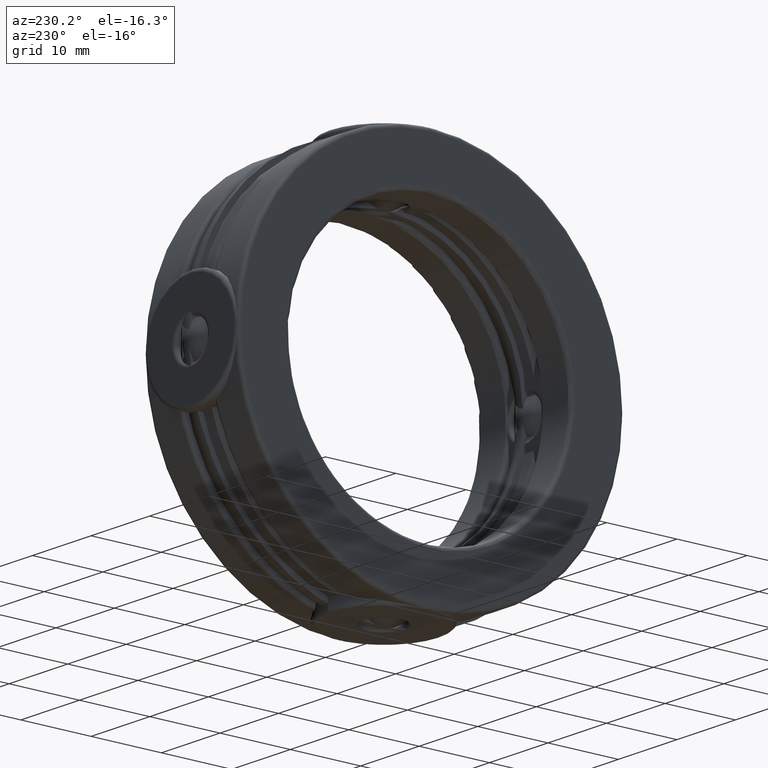
[diagram: clean part render]
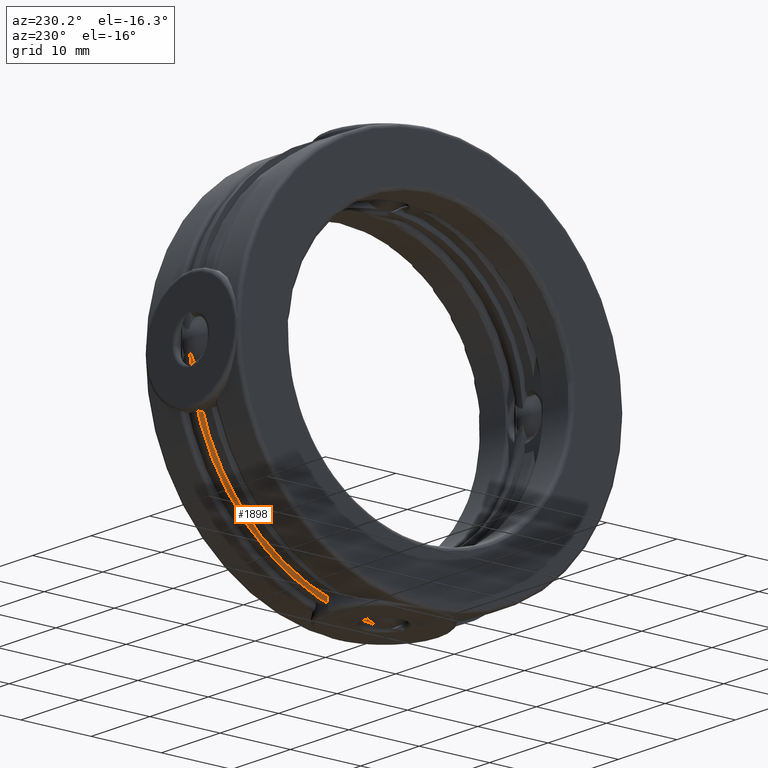
[diagram: same view with one face highlighted and labeled with its STEP entity id]
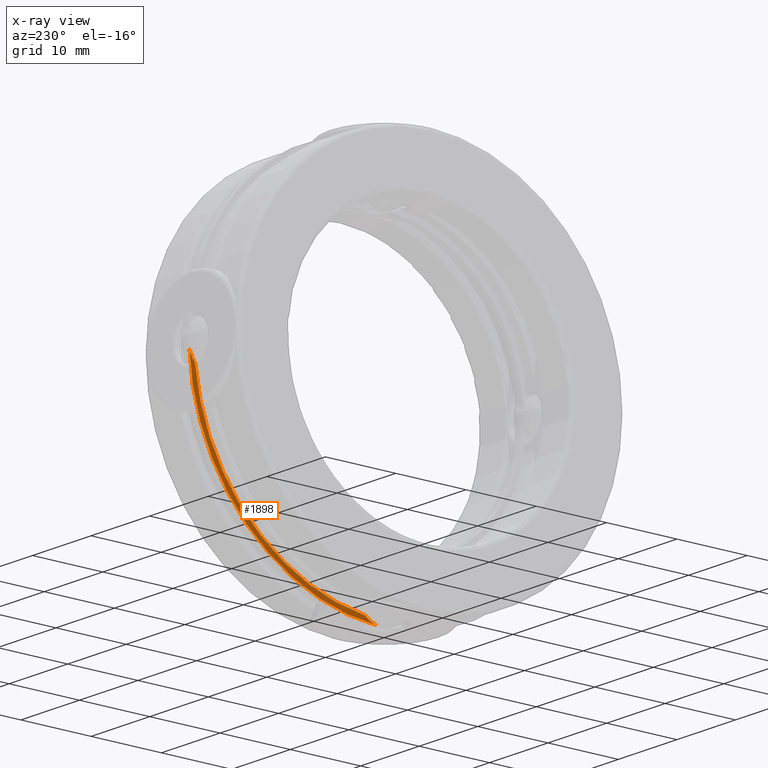
[diagram: x-ray of the same camera — body ghosted, the highlighted face saturated]
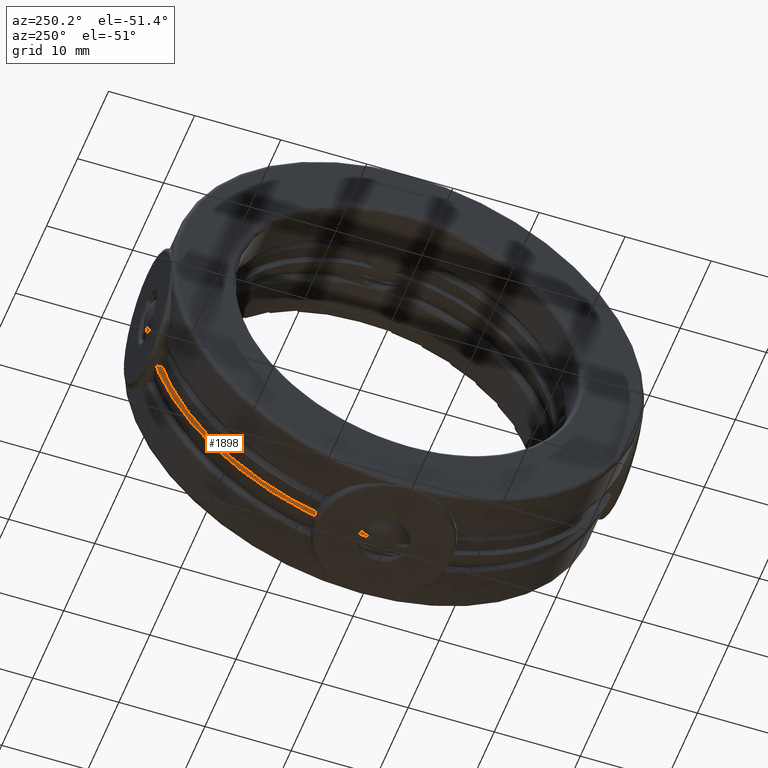
[diagram: same view with one face highlighted and labeled with its STEP entity id]
A machine part, auxiliary view. The second image highlights one B-rep face of the part: STEP entity #1898.
The next image is the same camera in x-ray: the body ghosted, the highlighted face saturated — about 0% of this face is hidden behind the body in this view.
A second angle (auxiliary view) of the same face is appended — the face is thin or edge-on in the first view.
In plain terms, the highlighted planar face has unit normal (1, 0, 0).
Its self-contained STEP definition (entity closure, byte-faithful):
#46 = EDGE_CURVE ( 'NONE', #2689, #1646, #1553, .T. ) ;
#146 = EDGE_LOOP ( 'NONE', ( #320, #1076, #2723, #2658 ) ) ;
#200 = AXIS2_PLACEMENT_3D ( 'NONE', #2102, #1603, #2138 ) ;
#320 = ORIENTED_EDGE ( 'NONE', *, *, #46, .T. ) ;
#482 = AXIS2_PLACEMENT_3D ( 'NONE', #3183, #1488, #996 ) ;
#547 = EDGE_CURVE ( 'NONE', #2689, #1709, #2828, .T. ) ;
#996 = DIRECTION ( 'NONE',  ( 0.0000000000000000000, 8.483999980323798800E-016, -1.000000000000000000 ) ) ;
#1076 = ORIENTED_EDGE ( 'NONE', *, *, #2000, .F. ) ;
#1384 = CIRCLE ( 'NONE', #3051, 0.1610000000000000000 ) ;
#1398 = DIRECTION ( 'NONE',  ( -1.000000000000000000, -0.0000000000000000000, -0.0000000000000000000 ) ) ;
#1488 = DIRECTION ( 'NONE',  ( -1.000000000000000000, -0.0000000000000000000, -0.0000000000000000000 ) ) ;
#1553 = CIRCLE ( 'NONE', #2834, 1.091000000000000200 ) ;
#1603 = DIRECTION ( 'NONE',  ( 1.000000000000000000, 0.0000000000000000000, 0.0000000000000000000 ) ) ;
#1646 = VERTEX_POINT ( 'NONE', #2533 ) ;
#1709 = VERTEX_POINT ( 'NONE', #3213 ) ;
#1790 = FACE_OUTER_BOUND ( 'NONE', #146, .T. ) ;
#1847 = VERTEX_POINT ( 'NONE', #2792 ) ;
#1877 = DIRECTION ( 'NONE',  ( 0.0000000000000000000, 0.0000000000000000000, 1.000000000000000000 ) ) ;
#1898 = ADVANCED_FACE ( 'NONE', ( #1790 ), #2114, .F. ) ;
#1993 = CARTESIAN_POINT ( 'NONE',  ( 0.0000000000000000000, 1.090152406417112400, -0.04299686945556829100 ) ) ;
#2000 = EDGE_CURVE ( 'NONE', #1847, #1646, #1384, .T. ) ;
#2102 = CARTESIAN_POINT ( 'NONE',  ( 0.0000000000000000000, 0.0000000000000000000, 0.0000000000000000000 ) ) ;
#2114 = PLANE ( 'NONE',  #200 ) ;
#2138 = DIRECTION ( 'NONE',  ( 0.0000000000000000000, 0.0000000000000000000, -1.000000000000000000 ) ) ;
#2347 = EDGE_CURVE ( 'NONE', #1709, #1847, #2814, .T. ) ;
#2360 = AXIS2_PLACEMENT_3D ( 'NONE', #3098, #2621, #1877 ) ;
#2511 = DIRECTION ( 'NONE',  ( 0.0000000000000000000, 0.0000000000000000000, 1.000000000000000000 ) ) ;
#2533 = CARTESIAN_POINT ( 'NONE',  ( 0.0000000000000000000, 0.04299686945556448200, -1.090152406417112600 ) ) ;
#2621 = DIRECTION ( 'NONE',  ( -1.000000000000000000, -0.0000000000000000000, -0.0000000000000000000 ) ) ;
#2658 = ORIENTED_EDGE ( 'NONE', *, *, #547, .F. ) ;
#2689 = VERTEX_POINT ( 'NONE', #1993 ) ;
#2709 = CARTESIAN_POINT ( 'NONE',  ( 0.0000000000000000000, 0.0000000000000000000, 0.0000000000000000000 ) ) ;
#2723 = ORIENTED_EDGE ( 'NONE', *, *, #2347, .F. ) ;
#2792 = CARTESIAN_POINT ( 'NONE',  ( 0.0000000000000000000, 0.1046707168665337400, -1.057331684491978900 ) ) ;
#2814 = CIRCLE ( 'NONE', #2360, 1.062500000000000000 ) ;
#2828 = CIRCLE ( 'NONE', #482, 0.1610000000000000000 ) ;
#2834 = AXIS2_PLACEMENT_3D ( 'NONE', #2709, #3217, #2511 ) ;
#2873 = CARTESIAN_POINT ( 'NONE',  ( 0.0000000000000000000, -3.264535051818329600E-015, -0.9350000000000000500 ) ) ;
#3051 = AXIS2_PLACEMENT_3D ( 'NONE', #2873, #1398, #3124 ) ;
#3098 = CARTESIAN_POINT ( 'NONE',  ( 0.0000000000000000000, 0.0000000000000000000, 0.0000000000000000000 ) ) ;
#3124 = DIRECTION ( 'NONE',  ( 0.0000000000000000000, -1.000000000000000000, 6.787199984259039100E-015 ) ) ;
#3183 = CARTESIAN_POINT ( 'NONE',  ( 0.0000000000000000000, 0.9350000000000000500, 0.0000000000000000000 ) ) ;
#3213 = CARTESIAN_POINT ( 'NONE',  ( 0.0000000000000000000, 1.057331684491978700, -0.1046707168665374400 ) ) ;
#3217 = DIRECTION ( 'NONE',  ( -1.000000000000000000, -0.0000000000000000000, -0.0000000000000000000 ) ) ;